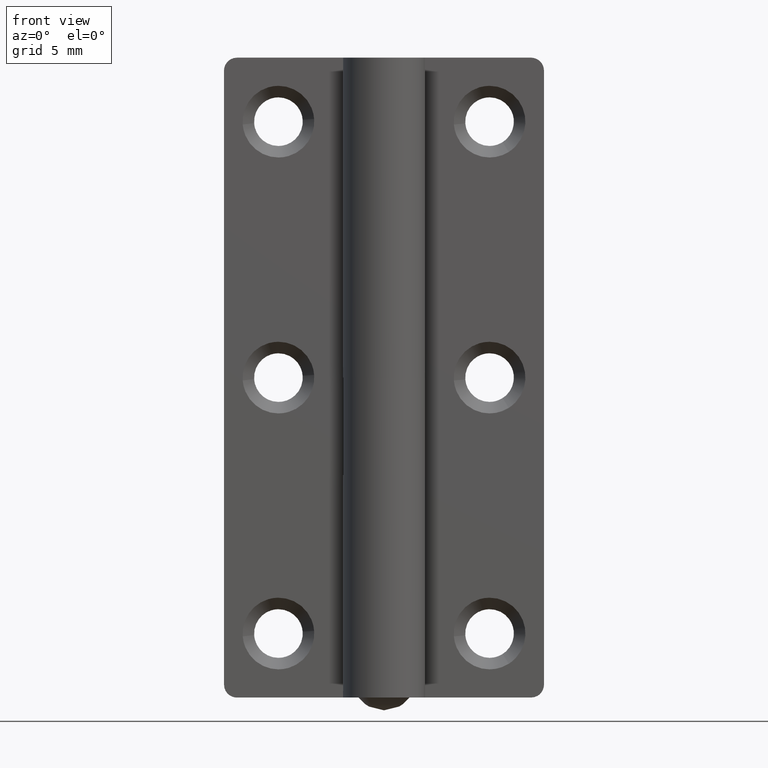
[diagram: clean part render]
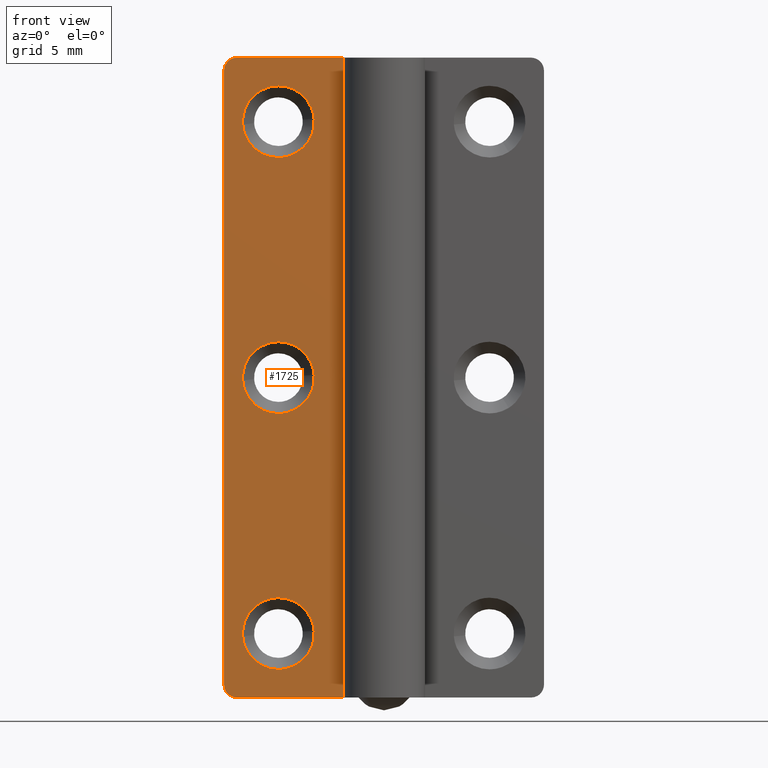
[diagram: same view with one face highlighted and labeled with its STEP entity id]
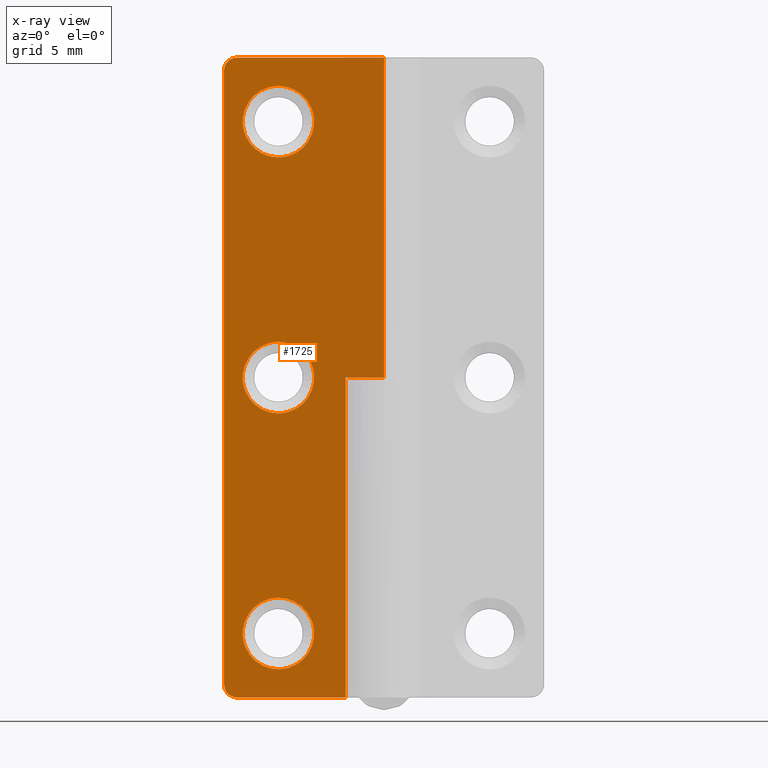
[diagram: x-ray of the same camera — body ghosted, the highlighted face saturated]
A machine part, front view. The second image highlights one B-rep face of the part: STEP entity #1725.
The next image is the same camera in x-ray: the body ghosted, the highlighted face saturated — about 0% of this face is hidden behind the body in this view.
In plain terms, the highlighted face is a freeform B-spline surface patch.
Its self-contained STEP definition (entity closure, byte-faithful):
#553=CARTESIAN_POINT('',(-5.458631513073850,1.999999999974804,45.219685464489359));
#554=VERTEX_POINT('',#553);
#560=CARTESIAN_POINT('',(-8.250000000000000,2.0,47.799999952316277));
#561=VERTEX_POINT('',#560);
#562=CARTESIAN_POINT('',(-8.250000000000000,2.0,47.799999952316277));
#563=CARTESIAN_POINT('',(-5.661706667790022,2.0,47.799999952316284));
#564=CARTESIAN_POINT('',(-5.458631513073850,1.999999999974804,45.219685464489359));
#572=(BOUNDED_CURVE()B_SPLINE_CURVE(2,(#562,#563,#564),.UNSPECIFIED.,.F.,.U.)B_SPLINE_CURVE_WITH_KNOTS((3,3),(0.0,0.236331300609352),.UNSPECIFIED.)CURVE()GEOMETRIC_REPRESENTATION_ITEM()RATIONAL_B_SPLINE_CURVE((1.0,0.723120658632629,0.969723356122950))REPRESENTATION_ITEM(''));
#573=EDGE_CURVE('',#561,#554,#572,.T.);
#575=CARTESIAN_POINT('',(-11.041368486926149,1.999999999974803,44.780314535510641));
#576=VERTEX_POINT('',#575);
#577=CARTESIAN_POINT('',(-11.041368486926151,1.999999999974803,44.780314535510641));
#578=CARTESIAN_POINT('',(-11.049999952316284,2.0,44.889987702060509));
#579=CARTESIAN_POINT('',(-11.049999952316290,2.0,45.0));
#580=CARTESIAN_POINT('',(-11.049999952316288,2.0,47.799999952316284));
#581=CARTESIAN_POINT('',(-8.250000000000000,2.0,47.799999952316277));
#589=(BOUNDED_CURVE()B_SPLINE_CURVE(2,(#577,#578,#579,#580,#581),.UNSPECIFIED.,.F.,.U.)B_SPLINE_CURVE_WITH_KNOTS((3,2,3),(0.736331300609352,0.750000000000000,1.0),.UNSPECIFIED.)CURVE()GEOMETRIC_REPRESENTATION_ITEM()RATIONAL_B_SPLINE_CURVE((0.969723356122949,0.983986122553918,1.0,0.707106781186547,1.0))REPRESENTATION_ITEM(''));
#590=EDGE_CURVE('',#576,#561,#589,.T.);
#627=CARTESIAN_POINT('',(-8.250000000000000,2.0,42.200000047683723));
#628=VERTEX_POINT('',#627);
#629=CARTESIAN_POINT('',(-8.250000000000000,2.0,42.200000047683723));
#630=CARTESIAN_POINT('',(-10.838293332209973,2.0,42.200000047683723));
#631=CARTESIAN_POINT('',(-11.041368486926155,1.999999999974804,44.780314535510641));
#639=(BOUNDED_CURVE()B_SPLINE_CURVE(2,(#629,#630,#631),.UNSPECIFIED.,.F.,.U.)B_SPLINE_CURVE_WITH_KNOTS((3,3),(0.500000000000000,0.736331300609351),.UNSPECIFIED.)CURVE()GEOMETRIC_REPRESENTATION_ITEM()RATIONAL_B_SPLINE_CURVE((1.0,0.723120658632630,0.969723356122949))REPRESENTATION_ITEM(''));
#640=EDGE_CURVE('',#628,#576,#639,.T.);
#642=CARTESIAN_POINT('',(-5.458631513073850,1.999999999974804,45.219685464489359));
#643=CARTESIAN_POINT('',(-5.450000047683714,2.0,45.110012297939491));
#644=CARTESIAN_POINT('',(-5.450000047683715,2.0,45.0));
#645=CARTESIAN_POINT('',(-5.450000047683717,2.0,42.200000047683716));
#646=CARTESIAN_POINT('',(-8.250000000000000,2.0,42.200000047683723));
#654=(BOUNDED_CURVE()B_SPLINE_CURVE(2,(#642,#643,#644,#645,#646),.UNSPECIFIED.,.F.,.U.)B_SPLINE_CURVE_WITH_KNOTS((3,2,3),(0.236331300609352,0.250000000000000,0.500000000000000),.UNSPECIFIED.)CURVE()GEOMETRIC_REPRESENTATION_ITEM()RATIONAL_B_SPLINE_CURVE((0.969723356122950,0.983986122553918,1.0,0.707106781186547,1.0))REPRESENTATION_ITEM(''));
#655=EDGE_CURVE('',#554,#628,#654,.T.);
#881=CARTESIAN_POINT('',(-5.458631513073850,1.999999999974804,25.219685464489359));
#882=VERTEX_POINT('',#881);
#888=CARTESIAN_POINT('',(-8.250000000000000,2.0,27.799999952316291));
#889=VERTEX_POINT('',#888);
#890=CARTESIAN_POINT('',(-8.250000000000000,2.0,27.799999952316291));
#891=CARTESIAN_POINT('',(-5.661706667790028,2.000000000000000,27.799999952316284));
#892=CARTESIAN_POINT('',(-5.458631513073850,1.999999999974804,25.219685464489359));
#900=(BOUNDED_CURVE()B_SPLINE_CURVE(2,(#890,#891,#892),.UNSPECIFIED.,.F.,.U.)B_SPLINE_CURVE_WITH_KNOTS((3,3),(0.0,0.236331300609352),.UNSPECIFIED.)CURVE()GEOMETRIC_REPRESENTATION_ITEM()RATIONAL_B_SPLINE_CURVE((1.0,0.723120658632629,0.969723356122949))REPRESENTATION_ITEM(''));
#901=EDGE_CURVE('',#889,#882,#900,.T.);
#903=CARTESIAN_POINT('',(-11.041368486926149,1.999999999974804,24.780314535510641));
#904=VERTEX_POINT('',#903);
#905=CARTESIAN_POINT('',(-11.041368486926149,1.999999999974804,24.780314535510637));
#906=CARTESIAN_POINT('',(-11.049999952316282,2.000000000000000,24.889987702060502));
#907=CARTESIAN_POINT('',(-11.049999952316290,2.0,25.0));
#908=CARTESIAN_POINT('',(-11.049999952316288,2.0,27.799999952316298));
#909=CARTESIAN_POINT('',(-8.250000000000000,2.0,27.799999952316291));
#917=(BOUNDED_CURVE()B_SPLINE_CURVE(2,(#905,#906,#907,#908,#909),.UNSPECIFIED.,.F.,.U.)B_SPLINE_CURVE_WITH_KNOTS((3,2,3),(0.736331300609352,0.750000000000000,1.0),.UNSPECIFIED.)CURVE()GEOMETRIC_REPRESENTATION_ITEM()RATIONAL_B_SPLINE_CURVE((0.969723356122950,0.983986122553918,1.0,0.707106781186547,1.0))REPRESENTATION_ITEM(''));
#918=EDGE_CURVE('',#904,#889,#917,.T.);
#955=CARTESIAN_POINT('',(-8.250000000000000,2.0,22.200000047683719));
#956=VERTEX_POINT('',#955);
#957=CARTESIAN_POINT('',(-8.250000000000000,2.0,22.200000047683719));
#958=CARTESIAN_POINT('',(-10.838293332209973,2.0,22.200000047683723));
#959=CARTESIAN_POINT('',(-11.041368486926155,1.999999999974804,24.780314535510637));
#967=(BOUNDED_CURVE()B_SPLINE_CURVE(2,(#957,#958,#959),.UNSPECIFIED.,.F.,.U.)B_SPLINE_CURVE_WITH_KNOTS((3,3),(0.500000000000000,0.736331300609351),.UNSPECIFIED.)CURVE()GEOMETRIC_REPRESENTATION_ITEM()RATIONAL_B_SPLINE_CURVE((1.0,0.723120658632630,0.969723356122949))REPRESENTATION_ITEM(''));
#968=EDGE_CURVE('',#956,#904,#967,.T.);
#970=CARTESIAN_POINT('',(-5.458631513073850,1.999999999974805,25.219685464489366));
#971=CARTESIAN_POINT('',(-5.450000047683714,2.000000000000000,25.110012297939502));
#972=CARTESIAN_POINT('',(-5.450000047683715,2.0,25.0));
#973=CARTESIAN_POINT('',(-5.450000047683717,2.0,22.200000047683712));
#974=CARTESIAN_POINT('',(-8.250000000000000,2.0,22.200000047683719));
#982=(BOUNDED_CURVE()B_SPLINE_CURVE(2,(#970,#971,#972,#973,#974),.UNSPECIFIED.,.F.,.U.)B_SPLINE_CURVE_WITH_KNOTS((3,2,3),(0.236331300609352,0.250000000000000,0.500000000000000),.UNSPECIFIED.)CURVE()GEOMETRIC_REPRESENTATION_ITEM()RATIONAL_B_SPLINE_CURVE((0.969723356122950,0.983986122553918,1.0,0.707106781186547,1.0))REPRESENTATION_ITEM(''));
#983=EDGE_CURVE('',#882,#956,#982,.T.);
#1209=CARTESIAN_POINT('',(-5.458631513073850,1.999999999974804,5.219685464489362));
#1210=VERTEX_POINT('',#1209);
#1216=CARTESIAN_POINT('',(-8.250000000000000,2.0,7.799999952316285));
#1217=VERTEX_POINT('',#1216);
#1218=CARTESIAN_POINT('',(-8.250000000000000,2.0,7.799999952316285));
#1219=CARTESIAN_POINT('',(-5.661706667790027,2.000000000000000,7.799999952316285));
#1220=CARTESIAN_POINT('',(-5.458631513073850,1.999999999974804,5.219685464489362));
#1228=(BOUNDED_CURVE()B_SPLINE_CURVE(2,(#1218,#1219,#1220),.UNSPECIFIED.,.F.,.U.)B_SPLINE_CURVE_WITH_KNOTS((3,3),(0.0,0.236331300609352),.UNSPECIFIED.)CURVE()GEOMETRIC_REPRESENTATION_ITEM()RATIONAL_B_SPLINE_CURVE((1.0,0.723120658632629,0.969723356122949))REPRESENTATION_ITEM(''));
#1229=EDGE_CURVE('',#1217,#1210,#1228,.T.);
#1231=CARTESIAN_POINT('',(-11.041368486926149,1.999999999974804,4.780314535510637));
#1232=VERTEX_POINT('',#1231);
#1233=CARTESIAN_POINT('',(-11.041368486926151,1.999999999974804,4.780314535510637));
#1234=CARTESIAN_POINT('',(-11.049999952316284,2.0,4.889987702060498));
#1235=CARTESIAN_POINT('',(-11.049999952316290,2.0,5.0));
#1236=CARTESIAN_POINT('',(-11.049999952316288,2.0,7.799999952316285));
#1237=CARTESIAN_POINT('',(-8.250000000000000,2.0,7.799999952316285));
#1245=(BOUNDED_CURVE()B_SPLINE_CURVE(2,(#1233,#1234,#1235,#1236,#1237),.UNSPECIFIED.,.F.,.U.)B_SPLINE_CURVE_WITH_KNOTS((3,2,3),(0.736331300609352,0.750000000000000,1.0),.UNSPECIFIED.)CURVE()GEOMETRIC_REPRESENTATION_ITEM()RATIONAL_B_SPLINE_CURVE((0.969723356122949,0.983986122553918,1.0,0.707106781186547,1.0))REPRESENTATION_ITEM(''));
#1246=EDGE_CURVE('',#1232,#1217,#1245,.T.);
#1283=CARTESIAN_POINT('',(-8.250000000000000,2.0,2.200000047683715));
#1284=VERTEX_POINT('',#1283);
#1285=CARTESIAN_POINT('',(-8.250000000000000,2.0,2.200000047683715));
#1286=CARTESIAN_POINT('',(-10.838293332209973,2.0,2.200000047683716));
#1287=CARTESIAN_POINT('',(-11.041368486926155,1.999999999974804,4.780314535510638));
#1295=(BOUNDED_CURVE()B_SPLINE_CURVE(2,(#1285,#1286,#1287),.UNSPECIFIED.,.F.,.U.)B_SPLINE_CURVE_WITH_KNOTS((3,3),(0.500000000000000,0.736331300609351),.UNSPECIFIED.)CURVE()GEOMETRIC_REPRESENTATION_ITEM()RATIONAL_B_SPLINE_CURVE((1.0,0.723120658632630,0.969723356122949))REPRESENTATION_ITEM(''));
#1296=EDGE_CURVE('',#1284,#1232,#1295,.T.);
#1298=CARTESIAN_POINT('',(-5.458631513073850,1.999999999974804,5.219685464489362));
#1299=CARTESIAN_POINT('',(-5.450000047683716,2.000000000000000,5.110012297939502));
#1300=CARTESIAN_POINT('',(-5.450000047683715,2.0,5.0));
#1301=CARTESIAN_POINT('',(-5.450000047683717,2.0,2.200000047683715));
#1302=CARTESIAN_POINT('',(-8.250000000000000,2.0,2.200000047683715));
#1310=(BOUNDED_CURVE()B_SPLINE_CURVE(2,(#1298,#1299,#1300,#1301,#1302),.UNSPECIFIED.,.F.,.U.)B_SPLINE_CURVE_WITH_KNOTS((3,2,3),(0.236331300609352,0.250000000000000,0.500000000000000),.UNSPECIFIED.)CURVE()GEOMETRIC_REPRESENTATION_ITEM()RATIONAL_B_SPLINE_CURVE((0.969723356122950,0.983986122553918,1.0,0.707106781186547,1.0))REPRESENTATION_ITEM(''));
#1311=EDGE_CURVE('',#1210,#1284,#1310,.T.);
#1322=CARTESIAN_POINT('',(-3.0,2.0,25.0));
#1323=VERTEX_POINT('',#1322);
#1324=CARTESIAN_POINT('',(-3.0,2.0,0.0));
#1325=VERTEX_POINT('',#1324);
#1326=CARTESIAN_POINT('',(-3.0,2.0,25.0));
#1327=CARTESIAN_POINT('',(-3.0,2.0,0.0));
#1328=QUASI_UNIFORM_CURVE('',1,(#1326,#1327),.UNSPECIFIED.,.F.,.U.);
#1329=EDGE_CURVE('',#1323,#1325,#1328,.T.);
#1388=CARTESIAN_POINT('',(0.0,2.0,25.0));
#1389=VERTEX_POINT('',#1388);
#1409=CARTESIAN_POINT('',(0.0,2.0,25.0));
#1410=CARTESIAN_POINT('',(-3.0,2.0,25.0));
#1411=QUASI_UNIFORM_CURVE('',1,(#1409,#1410),.UNSPECIFIED.,.F.,.U.);
#1412=EDGE_CURVE('',#1389,#1323,#1411,.T.);
#1437=CARTESIAN_POINT('',(-11.500000000000000,2.0,50.0));
#1438=VERTEX_POINT('',#1437);
#1439=CARTESIAN_POINT('',(-12.500000000000000,2.0,49.0));
#1440=VERTEX_POINT('',#1439);
#1441=CARTESIAN_POINT('',(-11.500000000000000,2.0,50.0));
#1442=CARTESIAN_POINT('',(-12.500000000000000,2.000000000000000,50.0));
#1443=CARTESIAN_POINT('',(-12.500000000000000,2.0,49.0));
#1451=(BOUNDED_CURVE()B_SPLINE_CURVE(2,(#1441,#1442,#1443),.UNSPECIFIED.,.F.,.U.)CURVE()GEOMETRIC_REPRESENTATION_ITEM()QUASI_UNIFORM_CURVE()RATIONAL_B_SPLINE_CURVE((1.0,0.707106781186548,1.0))REPRESENTATION_ITEM(''));
#1452=EDGE_CURVE('',#1438,#1440,#1451,.T.);
#1498=CARTESIAN_POINT('',(-12.500000000000000,2.0,1.0));
#1499=VERTEX_POINT('',#1498);
#1500=CARTESIAN_POINT('',(-11.500000000000000,2.0,0.0));
#1501=VERTEX_POINT('',#1500);
#1502=CARTESIAN_POINT('',(-12.500000000000000,2.0,1.0));
#1503=CARTESIAN_POINT('',(-12.500000000000000,2.000000000000000,0.0));
#1504=CARTESIAN_POINT('',(-11.500000000000000,2.0,0.0));
#1512=(BOUNDED_CURVE()B_SPLINE_CURVE(2,(#1502,#1503,#1504),.UNSPECIFIED.,.F.,.U.)CURVE()GEOMETRIC_REPRESENTATION_ITEM()QUASI_UNIFORM_CURVE()RATIONAL_B_SPLINE_CURVE((1.0,0.707106781186548,1.0))REPRESENTATION_ITEM(''));
#1513=EDGE_CURVE('',#1499,#1501,#1512,.T.);
#1575=CARTESIAN_POINT('',(1.224606E-016,2.0,50.0));
#1576=VERTEX_POINT('',#1575);
#1596=CARTESIAN_POINT('',(0.0,2.0,25.0));
#1597=CARTESIAN_POINT('',(1.224606E-016,2.0,50.0));
#1598=QUASI_UNIFORM_CURVE('',1,(#1596,#1597),.UNSPECIFIED.,.F.,.U.);
#1599=EDGE_CURVE('',#1389,#1576,#1598,.T.);
#1632=CARTESIAN_POINT('',(1.224606E-016,2.0,50.0));
#1633=CARTESIAN_POINT('',(-11.500000000000000,2.0,50.0));
#1634=QUASI_UNIFORM_CURVE('',1,(#1632,#1633),.UNSPECIFIED.,.F.,.U.);
#1635=EDGE_CURVE('',#1576,#1438,#1634,.T.);
#1680=CARTESIAN_POINT('',(-12.500000000000000,2.0,1.0));
#1681=CARTESIAN_POINT('',(-12.500000000000000,2.0,49.0));
#1682=QUASI_UNIFORM_CURVE('',1,(#1680,#1681),.UNSPECIFIED.,.F.,.U.);
#1683=EDGE_CURVE('',#1499,#1440,#1682,.T.);
#1688=CARTESIAN_POINT('',(-13.124374975772570,2.0,-2.497499903090299));
#1689=CARTESIAN_POINT('',(-13.124374975772570,2.0,52.497501244194808));
#1690=CARTESIAN_POINT('',(0.624375311048700,2.0,-2.497499903090299));
#1691=CARTESIAN_POINT('',(0.624375311048700,2.0,52.497501244194808));
#1692=B_SPLINE_SURFACE_WITH_KNOTS('',1,1,((#1688,#1690),(#1689,#1691)),.UNSPECIFIED.,.F.,.F.,.U.,(2,2),(2,2),(0.0,54.995001147285109),(0.0,13.748750286821270),.UNSPECIFIED.);
#1693=ORIENTED_EDGE('',*,*,#1329,.F.);
#1694=ORIENTED_EDGE('',*,*,#1412,.F.);
#1695=ORIENTED_EDGE('',*,*,#1599,.T.);
#1696=ORIENTED_EDGE('',*,*,#1635,.T.);
#1697=ORIENTED_EDGE('',*,*,#1452,.T.);
#1698=ORIENTED_EDGE('',*,*,#1683,.F.);
#1699=ORIENTED_EDGE('',*,*,#1513,.T.);
#1700=CARTESIAN_POINT('',(-3.0,2.0,0.0));
#1701=CARTESIAN_POINT('',(-11.500000000000000,2.0,0.0));
#1702=QUASI_UNIFORM_CURVE('',1,(#1700,#1701),.UNSPECIFIED.,.F.,.U.);
#1703=EDGE_CURVE('',#1325,#1501,#1702,.T.);
#1704=ORIENTED_EDGE('',*,*,#1703,.F.);
#1705=EDGE_LOOP('',(#1693,#1694,#1695,#1696,#1697,#1698,#1699,#1704));
#1706=FACE_OUTER_BOUND('',#1705,.T.);
#1707=ORIENTED_EDGE('',*,*,#1296,.T.);
#1708=ORIENTED_EDGE('',*,*,#1246,.T.);
#1709=ORIENTED_EDGE('',*,*,#1229,.T.);
#1710=ORIENTED_EDGE('',*,*,#1311,.T.);
#1711=EDGE_LOOP('',(#1707,#1708,#1709,#1710));
#1712=FACE_BOUND('',#1711,.T.);
#1713=ORIENTED_EDGE('',*,*,#968,.T.);
#1714=ORIENTED_EDGE('',*,*,#918,.T.);
#1715=ORIENTED_EDGE('',*,*,#901,.T.);
#1716=ORIENTED_EDGE('',*,*,#983,.T.);
#1717=EDGE_LOOP('',(#1713,#1714,#1715,#1716));
#1718=FACE_BOUND('',#1717,.T.);
#1719=ORIENTED_EDGE('',*,*,#640,.T.);
#1720=ORIENTED_EDGE('',*,*,#590,.T.);
#1721=ORIENTED_EDGE('',*,*,#573,.T.);
#1722=ORIENTED_EDGE('',*,*,#655,.T.);
#1723=EDGE_LOOP('',(#1719,#1720,#1721,#1722));
#1724=FACE_BOUND('',#1723,.T.);
#1725=ADVANCED_FACE('',(#1706,#1712,#1718,#1724),#1692,.F.);